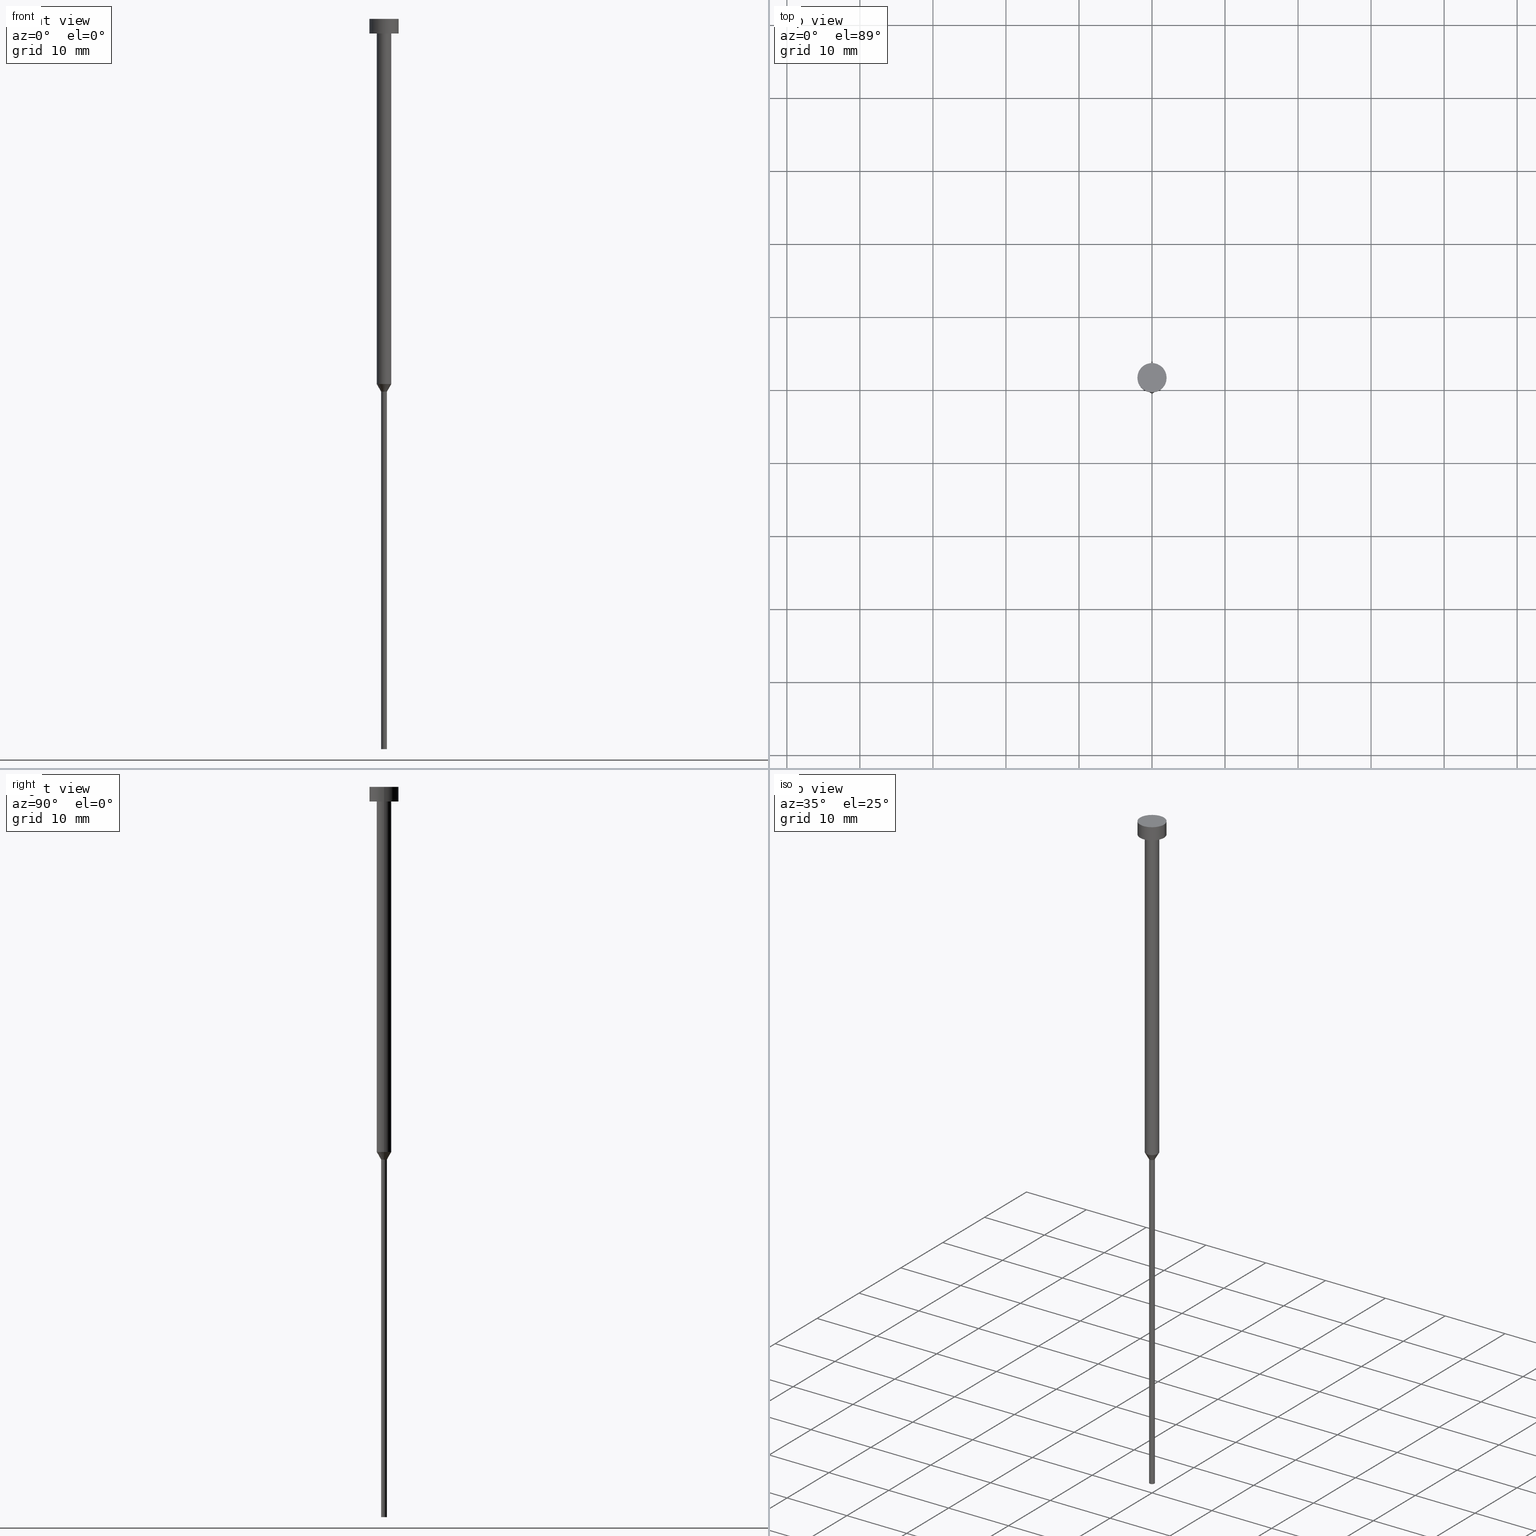
[diagram: canonical four-view strip — front | top / right | iso, engineering-drawing reading convention]
A machine part, canonical four-view strip (front | top / right | iso — engineering-drawing reading convention). The complete STEP part file that produces these views, byte-faithful:
ISO-10303-21;
HEADER;
FILE_DESCRIPTION (( 'STEP AP203' ),
    '1' );
FILE_NAME ('e189.STEP',
    '2026-01-05T10:09:56',
    ( '' ),
    ( '' ),
    'SwSTEP 2.0',
    'SolidWorks 2019',
    '' );
FILE_SCHEMA (( 'CONFIG_CONTROL_DESIGN' ));
ENDSEC;

DATA;
#1 = CARTESIAN_POINT ( 'NONE',  ( -1.000000000000003109, 1.224646799147356905E-16, -50.00000000000000000 ) ) ;
#2 = ORIENTED_EDGE ( 'NONE', *, *, #65, .F. ) ;
#3 = CARTESIAN_POINT ( 'NONE',  ( 0.000000000000000000, 0.000000000000000000, -2.000000000000000444 ) ) ;
#4 = CIRCLE ( 'NONE', #15, 2.000000000000000000 ) ;
#5 = DIRECTION ( 'NONE',  ( 1.000000000000000000, 0.000000000000000000, 0.000000000000000000 ) ) ;
#6 = ORIENTED_EDGE ( 'NONE', *, *, #65, .T. ) ;
#7 = EDGE_LOOP ( 'NONE', ( #260, #231 ) ) ;
#8 = AXIS2_PLACEMENT_3D ( 'NONE', #32, #27, #102 ) ;
#9 = AXIS2_PLACEMENT_3D ( 'NONE', #196, #279, #306 ) ;
#10 = APPLICATION_PROTOCOL_DEFINITION ( 'international standard', 'config_control_design', 1994, #237 ) ;
#11 = VERTEX_POINT ( 'NONE', #146 ) ;
#12 = PERSON_AND_ORGANIZATION ( #340, #163 ) ;
#13 = ORIENTED_EDGE ( 'NONE', *, *, #284, .F. ) ;
#14 = DIRECTION ( 'NONE',  ( 1.000000000000000000, 0.000000000000000000, 0.000000000000000000 ) ) ;
#15 = AXIS2_PLACEMENT_3D ( 'NONE', #325, #85, #261 ) ;
#16 = DIRECTION ( 'NONE',  ( -0.000000000000000000, -0.000000000000000000, 1.000000000000000000 ) ) ;
#17 = CIRCLE ( 'NONE', #220, 1.000000000000003553 ) ;
#18 = DIRECTION ( 'NONE',  ( -0.000000000000000000, -0.000000000000000000, 1.000000000000000000 ) ) ;
#19 = DIRECTION ( 'NONE',  ( 1.000000000000000000, 0.000000000000000000, 0.000000000000000000 ) ) ;
#20 = DIRECTION ( 'NONE',  ( -0.000000000000000000, -0.000000000000000000, 1.000000000000000000 ) ) ;
#21 = CIRCLE ( 'NONE', #319, 1.000000000000003109 ) ;
#22 = COORDINATED_UNIVERSAL_TIME_OFFSET ( 1, 0, .AHEAD. ) ;
#23 = LINE ( 'NONE', #238, #232 ) ;
#24 = CIRCLE ( 'NONE', #313, 2.000000000000000000 ) ;
#25 = DATE_AND_TIME ( #140, #53 ) ;
#26 = ORIENTED_EDGE ( 'NONE', *, *, #258, .F. ) ;
#27 = DIRECTION ( 'NONE',  ( -0.000000000000000000, -0.000000000000000000, 1.000000000000000000 ) ) ;
#28 = ORIENTED_EDGE ( 'NONE', *, *, #215, .F. ) ;
#29 = AXIS2_PLACEMENT_3D ( 'NONE', #295, #115, #19 ) ;
#30 = EDGE_CURVE ( 'NONE', #311, #168, #203, .T. ) ;
#31 = ADVANCED_FACE ( 'NONE', ( #100 ), #124, .T. ) ;
#32 = CARTESIAN_POINT ( 'NONE',  ( 0.000000000000000000, 0.000000000000000000, 0.000000000000000000 ) ) ;
#33 = PERSON_AND_ORGANIZATION ( #340, #163 ) ;
#34 = APPROVAL ( #191, 'NEUR�EN�' ) ;
#35 = VERTEX_POINT ( 'NONE', #285 ) ;
#36 = AXIS2_PLACEMENT_3D ( 'NONE', #147, #16, #309 ) ;
#37 = AXIS2_PLACEMENT_3D ( 'NONE', #108, #75, #61 ) ;
#38 = EDGE_CURVE ( 'NONE', #121, #307, #198, .T. ) ;
#39 = APPROVAL_ROLE ( '' ) ;
#40 = ORIENTED_EDGE ( 'NONE', *, *, #215, .T. ) ;
#41 = DIRECTION ( 'NONE',  ( 0.000000000000000000, -0.000000000000000000, 1.000000000000000000 ) ) ;
#42 = VERTEX_POINT ( 'NONE', #126 ) ;
#43 = CC_DESIGN_DATE_AND_TIME_ASSIGNMENT ( #239, #354, ( #144 ) ) ;
#44 = DIRECTION ( 'NONE',  ( -0.000000000000000000, -0.000000000000000000, 1.000000000000000000 ) ) ;
#45 = ORIENTED_EDGE ( 'NONE', *, *, #135, .F. ) ;
#46 = APPROVAL_STATUS ( 'not_yet_approved' ) ;
#47 = ORIENTED_EDGE ( 'NONE', *, *, #194, .T. ) ;
#48 = DIRECTION ( 'NONE',  ( 1.000000000000000000, 0.000000000000000000, 0.000000000000000000 ) ) ;
#49 = ADVANCED_FACE ( 'NONE', ( #233 ), #71, .T. ) ;
#50 = DIRECTION ( 'NONE',  ( 1.000000000000000000, 0.000000000000000000, 0.000000000000000000 ) ) ;
#51 = CARTESIAN_POINT ( 'NONE',  ( 0.000000000000000000, 0.000000000000000000, 0.000000000000000000 ) ) ;
#52 = DIRECTION ( 'NONE',  ( -0.000000000000000000, -0.000000000000000000, 1.000000000000000000 ) ) ;
#53 = LOCAL_TIME ( 11, 9, 56.00000000000000000, #98 ) ;
#54 = CYLINDRICAL_SURFACE ( 'NONE', #8, 2.000000000000000000 ) ;
#55 = APPROVAL_DATE_TIME ( #302, #34 ) ;
#56 = ORIENTED_EDGE ( 'NONE', *, *, #167, .T. ) ;
#57 = DIRECTION ( 'NONE',  ( -0.000000000000000000, -0.000000000000000000, 1.000000000000000000 ) ) ;
#58 = PERSON_AND_ORGANIZATION_ROLE ( 'creator' ) ;
#59 = EDGE_LOOP ( 'NONE', ( #117, #64, #28, #195 ) ) ;
#60 = PRODUCT_DEFINITION_FORMATION_WITH_SPECIFIED_SOURCE ( 'LIBOVOLN�', '', #105, .NOT_KNOWN. ) ;
#61 = DIRECTION ( 'NONE',  ( 1.000000000000000000, 0.000000000000000000, 0.000000000000000000 ) ) ;
#62 = EDGE_CURVE ( 'NONE', #311, #86, #294, .T. ) ;
#63 = VECTOR ( 'NONE', #93, 1000.000000000000000 ) ;
#64 = ORIENTED_EDGE ( 'NONE', *, *, #91, .T. ) ;
#65 = EDGE_CURVE ( 'NONE', #86, #355, #130, .T. ) ;
#66 = ORIENTED_EDGE ( 'NONE', *, *, #38, .T. ) ;
#67 = MECHANICAL_CONTEXT ( 'NONE', #237, 'mechanical' ) ;
#68 = AXIS2_PLACEMENT_3D ( 'NONE', #346, #139, #50 ) ;
#69 = CARTESIAN_POINT ( 'NONE',  ( 0.000000000000000000, 0.000000000000000000, -51.03923048454132783 ) ) ;
#70 = AXIS2_PLACEMENT_3D ( 'NONE', #51, #263, #48 ) ;
#71 = PLANE ( 'NONE',  #227 ) ;
#72 = PLANE ( 'NONE',  #78 ) ;
#73 = CARTESIAN_POINT ( 'NONE',  ( 0.000000000000000000, 0.000000000000000000, 0.000000000000000000 ) ) ;
#74 = DIRECTION ( 'NONE',  ( -0.000000000000000000, -0.000000000000000000, 1.000000000000000000 ) ) ;
#75 = DIRECTION ( 'NONE',  ( -0.000000000000000000, -0.000000000000000000, 1.000000000000000000 ) ) ;
#76 = DIRECTION ( 'NONE',  ( 1.000000000000000000, 0.000000000000000000, 0.000000000000000000 ) ) ;
#77 = CYLINDRICAL_SURFACE ( 'NONE', #70, 1.000000000000003331 ) ;
#78 = AXIS2_PLACEMENT_3D ( 'NONE', #337, #41, #14 ) ;
#79 = CARTESIAN_POINT ( 'NONE',  ( 0.000000000000000000, 0.000000000000000000, -2.449293598294705921E-16 ) ) ;
#80 = ADVANCED_FACE ( 'NONE', ( #347 ), #82, .T. ) ;
#81 = APPROVAL_STATUS ( 'not_yet_approved' ) ;
#82 = CONICAL_SURFACE ( 'NONE', #274, 1.000000000000003109, 0.5235987755983013692 ) ;
#83 = VERTEX_POINT ( 'NONE', #288 ) ;
#84 = VECTOR ( 'NONE', #157, 1000.000000000000000 ) ;
#85 = DIRECTION ( 'NONE',  ( -0.000000000000000000, -0.000000000000000000, 1.000000000000000000 ) ) ;
#86 = VERTEX_POINT ( 'NONE', #350 ) ;
#87 = CARTESIAN_POINT ( 'NONE',  ( 0.000000000000000000, 0.000000000000000000, -50.00000000000000000 ) ) ;
#88 = PERSON_AND_ORGANIZATION_ROLE ( 'classification_officer' ) ;
#89 = CC_DESIGN_APPROVAL ( #164, ( #178 ) ) ;
#90 = ORIENTED_EDGE ( 'NONE', *, *, #284, .T. ) ;
#91 = EDGE_CURVE ( 'NONE', #278, #35, #23, .T. ) ;
#92 = EDGE_CURVE ( 'NONE', #278, #11, #166, .T. ) ;
#93 = DIRECTION ( 'NONE',  ( -0.000000000000000000, -0.000000000000000000, 1.000000000000000000 ) ) ;
#94 = ORIENTED_EDGE ( 'NONE', *, *, #135, .T. ) ;
#95 = CC_DESIGN_PERSON_AND_ORGANIZATION_ASSIGNMENT ( #158, #185, ( #60 ) ) ;
#96 = CARTESIAN_POINT ( 'NONE',  ( 2.000000000000000000, 0.000000000000000000, 0.000000000000000000 ) ) ;
#97 = LOCAL_TIME ( 11, 9, 56.00000000000000000, #161 ) ;
#98 = COORDINATED_UNIVERSAL_TIME_OFFSET ( 1, 0, .AHEAD. ) ;
#99 = EDGE_CURVE ( 'NONE', #35, #83, #17, .T. ) ;
#100 = FACE_OUTER_BOUND ( 'NONE', #276, .T. ) ;
#101 = DIRECTION ( 'NONE',  ( 0.000000000000000000, 0.000000000000000000, -1.000000000000000000 ) ) ;
#102 = DIRECTION ( 'NONE',  ( 1.000000000000000000, 0.000000000000000000, 0.000000000000000000 ) ) ;
#103 = CARTESIAN_POINT ( 'NONE',  ( 0.000000000000000000, 0.000000000000000000, -50.00000000000000000 ) ) ;
#104 = APPROVAL_PERSON_ORGANIZATION ( #137, #331, #218 ) ;
#105 = PRODUCT ( 'e189', 'e189', '', ( #67 ) ) ;
#106 = CC_DESIGN_PERSON_AND_ORGANIZATION_ASSIGNMENT ( #12, #229, ( #105 ) ) ;
#107 = CARTESIAN_POINT ( 'NONE',  ( -2.000000000000000000, 2.449293598294706414E-16, -2.449293598294705921E-16 ) ) ;
#108 = CARTESIAN_POINT ( 'NONE',  ( 0.000000000000000000, 0.000000000000000000, -50.00000000000000000 ) ) ;
#109 = SECURITY_CLASSIFICATION_LEVEL ( 'unclassified' ) ;
#110 = EDGE_LOOP ( 'NONE', ( #293, #323, #251, #159 ) ) ;
#111 = CIRCLE ( 'NONE', #68, 0.4000000000000000222 ) ;
#112 = DIRECTION ( 'NONE',  ( 0.5000000000000021094, 0.000000000000000000, 0.8660254037844373753 ) ) ;
#113 = PERSON_AND_ORGANIZATION ( #340, #163 ) ;
#114 = ORIENTED_EDGE ( 'NONE', *, *, #30, .F. ) ;
#115 = DIRECTION ( 'NONE',  ( -0.000000000000000000, -0.000000000000000000, 1.000000000000000000 ) ) ;
#116 = VECTOR ( 'NONE', #208, 1000.000000000000000 ) ;
#117 = ORIENTED_EDGE ( 'NONE', *, *, #221, .T. ) ;
#118 = CYLINDRICAL_SURFACE ( 'NONE', #9, 1.000000000000003331 ) ;
#119 = EDGE_LOOP ( 'NONE', ( #114, #202, #6, #26 ) ) ;
#120 = VECTOR ( 'NONE', #329, 1000.000000000000227 ) ;
#121 = VERTEX_POINT ( 'NONE', #107 ) ;
#122 = APPLICATION_PROTOCOL_DEFINITION ( 'international standard', 'config_control_design', 1994, #333 ) ;
#123 = ADVANCED_FACE ( 'NONE', ( #318 ), #77, .T. ) ;
#124 = CYLINDRICAL_SURFACE ( 'NONE', #338, 0.3999999999999999667 ) ;
#125 = AXIS2_PLACEMENT_3D ( 'NONE', #243, #18, #286 ) ;
#126 = CARTESIAN_POINT ( 'NONE',  ( 2.000000000000000000, 0.000000000000000000, -2.000000000000000444 ) ) ;
#127 = CYLINDRICAL_SURFACE ( 'NONE', #342, 0.3999999999999999667 ) ;
#128 = LINE ( 'NONE', #217, #205 ) ;
#129 = CC_DESIGN_PERSON_AND_ORGANIZATION_ASSIGNMENT ( #33, #58, ( #178 ) ) ;
#130 = LINE ( 'NONE', #235, #116 ) ;
#131 = APPROVAL_PERSON_ORGANIZATION ( #296, #34, #292 ) ;
#132 = PERSON_AND_ORGANIZATION_ROLE ( 'creator' ) ;
#133 = CARTESIAN_POINT ( 'NONE',  ( 0.000000000000000000, 0.000000000000000000, -50.00000000000000000 ) ) ;
#134 = ORIENTED_EDGE ( 'NONE', *, *, #167, .F. ) ;
#135 = EDGE_CURVE ( 'NONE', #307, #121, #24, .T. ) ;
#136 = CARTESIAN_POINT ( 'NONE',  ( -1.000000000000003109, 1.224646799147356905E-16, -50.00000000000000000 ) ) ;
#137 = PERSON_AND_ORGANIZATION ( #340, #163 ) ;
#138 = ORIENTED_EDGE ( 'NONE', *, *, #213, .T. ) ;
#139 = DIRECTION ( 'NONE',  ( -0.000000000000000000, -0.000000000000000000, 1.000000000000000000 ) ) ;
#140 = CALENDAR_DATE ( 2026, 5, 1 ) ;
#141 = ORIENTED_EDGE ( 'NONE', *, *, #221, .F. ) ;
#142 = CARTESIAN_POINT ( 'NONE',  ( 2.000000000000000000, 0.000000000000000000, -2.449293598294705921E-16 ) ) ;
#143 = EDGE_LOOP ( 'NONE', ( #40, #216 ) ) ;
#144 = SECURITY_CLASSIFICATION ( '', '', #109 ) ;
#145 = PERSON_AND_ORGANIZATION ( #340, #163 ) ;
#146 = CARTESIAN_POINT ( 'NONE',  ( 1.000000000000003109, 0.000000000000000000, -50.00000000000000000 ) ) ;
#147 = CARTESIAN_POINT ( 'NONE',  ( 0.000000000000000000, 0.000000000000000000, -2.449293598294705921E-16 ) ) ;
#148 = DIRECTION ( 'NONE',  ( 1.000000000000000000, 0.000000000000000000, 0.000000000000000000 ) ) ;
#149 = ADVANCED_FACE ( 'NONE', ( #184 ), #54, .T. ) ;
#150 = ADVANCED_FACE ( 'NONE', ( #179 ), #177, .T. ) ;
#151 = LINE ( 'NONE', #301, #192 ) ;
#152 = CC_DESIGN_PERSON_AND_ORGANIZATION_ASSIGNMENT ( #268, #132, ( #60 ) ) ;
#153 = DIRECTION ( 'NONE',  ( -0.000000000000000000, -0.000000000000000000, 1.000000000000000000 ) ) ;
#154 = DIRECTION ( 'NONE',  ( -0.000000000000000000, -0.000000000000000000, 1.000000000000000000 ) ) ;
#155 = SHAPE_DEFINITION_REPRESENTATION ( #351, #193 ) ;
#156 = EDGE_CURVE ( 'NONE', #355, #11, #128, .T. ) ;
#157 = DIRECTION ( 'NONE',  ( -0.000000000000000000, -0.000000000000000000, 1.000000000000000000 ) ) ;
#158 = PERSON_AND_ORGANIZATION ( #340, #163 ) ;
#159 = ORIENTED_EDGE ( 'NONE', *, *, #99, .F. ) ;
#160 = DIRECTION ( 'NONE',  ( 1.000000000000000000, 0.000000000000000000, 0.000000000000000000 ) ) ;
#161 = COORDINATED_UNIVERSAL_TIME_OFFSET ( 1, 0, .AHEAD. ) ;
#162 = EDGE_LOOP ( 'NONE', ( #336, #169, #245, #254 ) ) ;
#163 = ORGANIZATION ( 'NEUR�EN�', 'NEUR�EN�', '' ) ;
#164 = APPROVAL ( #46, 'NEUR�EN�' ) ;
#165 = CONICAL_SURFACE ( 'NONE', #37, 1.000000000000003109, 0.5235987755983013692 ) ;
#166 = CIRCLE ( 'NONE', #324, 1.000000000000003109 ) ;
#167 = EDGE_CURVE ( 'NONE', #297, #121, #236, .T. ) ;
#168 = VERTEX_POINT ( 'NONE', #212 ) ;
#169 = ORIENTED_EDGE ( 'NONE', *, *, #258, .T. ) ;
#170 = UNCERTAINTY_MEASURE_WITH_UNIT (LENGTH_MEASURE( 1.000000000000000082E-05 ), #339, 'distance_accuracy_value', 'NONE');
#171 = CARTESIAN_POINT ( 'NONE',  ( 0.000000000000000000, -2.000000000000000000, -2.000000000000000444 ) ) ;
#172 = CC_DESIGN_APPROVAL ( #331, ( #60 ) ) ;
#173 = ORIENTED_EDGE ( 'NONE', *, *, #249, .T. ) ;
#174 = CARTESIAN_POINT ( 'NONE',  ( 0.3999999999999999667, 0.000000000000000000, -51.03923048454132783 ) ) ;
#175 = DIRECTION ( 'NONE',  ( -0.000000000000000000, -0.000000000000000000, 1.000000000000000000 ) ) ;
#176 = ADVANCED_FACE ( 'NONE', ( #299 ), #127, .T. ) ;
#177 = CYLINDRICAL_SURFACE ( 'NONE', #29, 2.000000000000000000 ) ;
#178 = PRODUCT_DEFINITION ( 'NEZN�M�', '', #60, #225 ) ;
#179 = FACE_OUTER_BOUND ( 'NONE', #242, .T. ) ;
#180 = DIRECTION ( 'NONE',  ( 1.000000000000000000, 0.000000000000000000, 0.000000000000000000 ) ) ;
#181 = DIRECTION ( 'NONE',  ( 1.000000000000000000, 0.000000000000000000, 0.000000000000000000 ) ) ;
#182 = ADVANCED_FACE ( 'NONE', ( #270 ), #165, .T. ) ;
#183 = AXIS2_PLACEMENT_3D ( 'NONE', #310, #226, #257 ) ;
#184 = FACE_OUTER_BOUND ( 'NONE', #224, .T. ) ;
#185 = PERSON_AND_ORGANIZATION_ROLE ( 'design_supplier' ) ;
#186 = EDGE_LOOP ( 'NONE', ( #305, #13 ) ) ;
#187 = DIRECTION ( 'NONE',  ( -0.000000000000000000, -0.000000000000000000, 1.000000000000000000 ) ) ;
#188 = EDGE_LOOP ( 'NONE', ( #222, #138, #141, #211 ) ) ;
#189 = DIRECTION ( 'NONE',  ( 1.000000000000000000, 0.000000000000000000, 0.000000000000000000 ) ) ;
#190 = CC_DESIGN_PERSON_AND_ORGANIZATION_ASSIGNMENT ( #113, #88, ( #144 ) ) ;
#191 = APPROVAL_STATUS ( 'not_yet_approved' ) ;
#192 = VECTOR ( 'NONE', #74, 1000.000000000000000 ) ;
#193 = ADVANCED_BREP_SHAPE_REPRESENTATION ( 'e189', ( #281, #183 ), #273 ) ;
#194 = EDGE_CURVE ( 'NONE', #42, #297, #4, .T. ) ;
#195 = ORIENTED_EDGE ( 'NONE', *, *, #289, .F. ) ;
#196 = CARTESIAN_POINT ( 'NONE',  ( 0.000000000000000000, 0.000000000000000000, 0.000000000000000000 ) ) ;
#197 = ORIENTED_EDGE ( 'NONE', *, *, #322, .F. ) ;
#198 = CIRCLE ( 'NONE', #36, 2.000000000000000000 ) ;
#199 = FACE_OUTER_BOUND ( 'NONE', #110, .T. ) ;
#200 = DIRECTION ( 'NONE',  ( 1.000000000000000000, 0.000000000000000000, 0.000000000000000000 ) ) ;
#201 = FACE_OUTER_BOUND ( 'NONE', #300, .T. ) ;
#202 = ORIENTED_EDGE ( 'NONE', *, *, #62, .T. ) ;
#203 = LINE ( 'NONE', #256, #326 ) ;
#204 = DIRECTION ( 'NONE',  ( 1.000000000000000000, 0.000000000000000000, 0.000000000000000000 ) ) ;
#205 = VECTOR ( 'NONE', #112, 1000.000000000000227 ) ;
#206 = CIRCLE ( 'NONE', #210, 0.3999999999999999667 ) ;
#207 = CARTESIAN_POINT ( 'NONE',  ( 0.000000000000000000, 0.000000000000000000, -2.000000000000000444 ) ) ;
#208 = DIRECTION ( 'NONE',  ( -0.000000000000000000, -0.000000000000000000, 1.000000000000000000 ) ) ;
#209 = CARTESIAN_POINT ( 'NONE',  ( -2.000000000000000000, 2.449293598294706414E-16, 0.000000000000000000 ) ) ;
#210 = AXIS2_PLACEMENT_3D ( 'NONE', #69, #44, #5 ) ;
#211 = ORIENTED_EDGE ( 'NONE', *, *, #156, .F. ) ;
#212 = CARTESIAN_POINT ( 'NONE',  ( -0.3999999999999999667, 4.898587196589412459E-17, -51.03923048454132783 ) ) ;
#213 = EDGE_CURVE ( 'NONE', #168, #278, #320, .T. ) ;
#214 = APPROVAL_DATE_TIME ( #25, #164 ) ;
#215 = EDGE_CURVE ( 'NONE', #83, #35, #259, .T. ) ;
#216 = ORIENTED_EDGE ( 'NONE', *, *, #99, .T. ) ;
#217 = CARTESIAN_POINT ( 'NONE',  ( 1.000000000000003109, 0.000000000000000000, -50.00000000000000000 ) ) ;
#218 = APPROVAL_ROLE ( '' ) ;
#219 = CC_DESIGN_APPROVAL ( #34, ( #144 ) ) ;
#220 = AXIS2_PLACEMENT_3D ( 'NONE', #207, #20, #76 ) ;
#221 = EDGE_CURVE ( 'NONE', #11, #278, #21, .T. ) ;
#222 = ORIENTED_EDGE ( 'NONE', *, *, #322, .T. ) ;
#223 = CARTESIAN_POINT ( 'NONE',  ( -0.4000000000000000777, 4.898587196589413692E-17, -100.0000000000000000 ) ) ;
#224 = EDGE_LOOP ( 'NONE', ( #47, #56, #45, #334 ) ) ;
#225 = DESIGN_CONTEXT ( 'detailed design', #333, 'design' ) ;
#226 = DIRECTION ( 'NONE',  ( 0.000000000000000000, 0.000000000000000000, 1.000000000000000000 ) ) ;
#227 = AXIS2_PLACEMENT_3D ( 'NONE', #344, #101, #290 ) ;
#228 = LINE ( 'NONE', #96, #63 ) ;
#229 = PERSON_AND_ORGANIZATION_ROLE ( 'design_owner' ) ;
#230 = CIRCLE ( 'NONE', #332, 2.000000000000000000 ) ;
#231 = ORIENTED_EDGE ( 'NONE', *, *, #62, .F. ) ;
#232 = VECTOR ( 'NONE', #52, 1000.000000000000000 ) ;
#233 = FACE_OUTER_BOUND ( 'NONE', #7, .T. ) ;
#234 = DIRECTION ( 'NONE',  ( -0.000000000000000000, -0.000000000000000000, 1.000000000000000000 ) ) ;
#235 = CARTESIAN_POINT ( 'NONE',  ( 0.3999999999999999667, 0.000000000000000000, 0.000000000000000000 ) ) ;
#236 = LINE ( 'NONE', #209, #84 ) ;
#237 = APPLICATION_CONTEXT ( 'configuration controlled 3d designs of mechanical parts and assemblies' ) ;
#238 = CARTESIAN_POINT ( 'NONE',  ( -1.000000000000003331, 1.224646799147357151E-16, 0.000000000000000000 ) ) ;
#239 = DATE_AND_TIME ( #327, #248 ) ;
#240 = CARTESIAN_POINT ( 'NONE',  ( 0.000000000000000000, 0.000000000000000000, -100.0000000000000000 ) ) ;
#241 = COORDINATED_UNIVERSAL_TIME_OFFSET ( 1, 0, .AHEAD. ) ;
#242 = EDGE_LOOP ( 'NONE', ( #134, #90, #269, #272 ) ) ;
#243 = CARTESIAN_POINT ( 'NONE',  ( 0.000000000000000000, 0.000000000000000000, -2.000000000000000444 ) ) ;
#244 = CALENDAR_DATE ( 2026, 5, 1 ) ;
#245 = ORIENTED_EDGE ( 'NONE', *, *, #156, .T. ) ;
#246 = CARTESIAN_POINT ( 'NONE',  ( 0.000000000000000000, 0.000000000000000000, -51.03923048454132783 ) ) ;
#247 = CALENDAR_DATE ( 2026, 5, 1 ) ;
#248 = LOCAL_TIME ( 11, 9, 56.00000000000000000, #317 ) ;
#249 = EDGE_CURVE ( 'NONE', #86, #311, #111, .T. ) ;
#250 = AXIS2_PLACEMENT_3D ( 'NONE', #240, #266, #180 ) ;
#251 = ORIENTED_EDGE ( 'NONE', *, *, #289, .T. ) ;
#252 = CC_DESIGN_DATE_AND_TIME_ASSIGNMENT ( #321, #352, ( #178 ) ) ;
#253 = AXIS2_PLACEMENT_3D ( 'NONE', #171, #283, #335 ) ;
#254 = ORIENTED_EDGE ( 'NONE', *, *, #92, .F. ) ;
#255 =( NAMED_UNIT ( * ) PLANE_ANGLE_UNIT ( ) SI_UNIT ( $, .RADIAN. ) );
#256 = CARTESIAN_POINT ( 'NONE',  ( -0.3999999999999999667, 4.898587196589412459E-17, 0.000000000000000000 ) ) ;
#257 = DIRECTION ( 'NONE',  ( 1.000000000000000000, 0.000000000000000000, 0.000000000000000000 ) ) ;
#258 = EDGE_CURVE ( 'NONE', #168, #355, #304, .T. ) ;
#259 = CIRCLE ( 'NONE', #125, 1.000000000000003553 ) ;
#260 = ORIENTED_EDGE ( 'NONE', *, *, #249, .F. ) ;
#261 = DIRECTION ( 'NONE',  ( 1.000000000000000000, 0.000000000000000000, 0.000000000000000000 ) ) ;
#262 = CARTESIAN_POINT ( 'NONE',  ( -2.000000000000000000, 2.449293598294706414E-16, -2.000000000000000444 ) ) ;
#263 = DIRECTION ( 'NONE',  ( -0.000000000000000000, -0.000000000000000000, 1.000000000000000000 ) ) ;
#264 = CC_DESIGN_SECURITY_CLASSIFICATION ( #144, ( #60 ) ) ;
#265 = CALENDAR_DATE ( 2026, 5, 1 ) ;
#266 = DIRECTION ( 'NONE',  ( -0.000000000000000000, -0.000000000000000000, 1.000000000000000000 ) ) ;
#267 = CARTESIAN_POINT ( 'NONE',  ( 0.000000000000000000, 0.000000000000000000, 0.000000000000000000 ) ) ;
#268 = PERSON_AND_ORGANIZATION ( #340, #163 ) ;
#269 = ORIENTED_EDGE ( 'NONE', *, *, #345, .T. ) ;
#270 = FACE_OUTER_BOUND ( 'NONE', #188, .T. ) ;
#271 = APPROVAL_DATE_TIME ( #330, #331 ) ;
#272 = ORIENTED_EDGE ( 'NONE', *, *, #38, .F. ) ;
#273 =( GEOMETRIC_REPRESENTATION_CONTEXT ( 3 ) GLOBAL_UNCERTAINTY_ASSIGNED_CONTEXT ( ( #170 ) ) GLOBAL_UNIT_ASSIGNED_CONTEXT ( ( #339, #255, #277 ) ) REPRESENTATION_CONTEXT ( 'NONE', 'WORKASPACE' ) );
#274 = AXIS2_PLACEMENT_3D ( 'NONE', #103, #153, #181 ) ;
#275 = CLOSED_SHELL ( 'NONE', ( #149, #123, #182, #31, #49, #176, #80, #353, #298, #150, #314 ) ) ;
#276 = EDGE_LOOP ( 'NONE', ( #173, #328, #197, #2 ) ) ;
#277 =( NAMED_UNIT ( * ) SI_UNIT ( $, .STERADIAN. ) SOLID_ANGLE_UNIT ( ) );
#278 = VERTEX_POINT ( 'NONE', #1 ) ;
#279 = DIRECTION ( 'NONE',  ( -0.000000000000000000, -0.000000000000000000, 1.000000000000000000 ) ) ;
#280 = LOCAL_TIME ( 11, 9, 56.00000000000000000, #241 ) ;
#281 = MANIFOLD_SOLID_BREP ( 'Rotovat1', #275 ) ;
#282 = DIRECTION ( 'NONE',  ( -0.000000000000000000, -0.000000000000000000, 1.000000000000000000 ) ) ;
#283 = DIRECTION ( 'NONE',  ( 0.000000000000000000, 0.000000000000000000, -1.000000000000000000 ) ) ;
#284 = EDGE_CURVE ( 'NONE', #297, #42, #230, .T. ) ;
#285 = CARTESIAN_POINT ( 'NONE',  ( -1.000000000000003553, 1.224646799147357398E-16, -2.000000000000000444 ) ) ;
#286 = DIRECTION ( 'NONE',  ( 1.000000000000000000, 0.000000000000000000, 0.000000000000000000 ) ) ;
#287 = DIRECTION ( 'NONE',  ( 1.000000000000000000, 0.000000000000000000, 0.000000000000000000 ) ) ;
#288 = CARTESIAN_POINT ( 'NONE',  ( 1.000000000000003553, 0.000000000000000000, -2.000000000000000444 ) ) ;
#289 = EDGE_CURVE ( 'NONE', #11, #83, #151, .T. ) ;
#290 = DIRECTION ( 'NONE',  ( -1.000000000000000000, 0.000000000000000000, -0.000000000000000000 ) ) ;
#291 = APPROVAL_PERSON_ORGANIZATION ( #145, #164, #39 ) ;
#292 = APPROVAL_ROLE ( '' ) ;
#293 = ORIENTED_EDGE ( 'NONE', *, *, #91, .F. ) ;
#294 = CIRCLE ( 'NONE', #250, 0.4000000000000000222 ) ;
#295 = CARTESIAN_POINT ( 'NONE',  ( 0.000000000000000000, 0.000000000000000000, 0.000000000000000000 ) ) ;
#296 = PERSON_AND_ORGANIZATION ( #340, #163 ) ;
#297 = VERTEX_POINT ( 'NONE', #262 ) ;
#298 = ADVANCED_FACE ( 'NONE', ( #343, #308 ), #341, .T. ) ;
#299 = FACE_OUTER_BOUND ( 'NONE', #119, .T. ) ;
#300 = EDGE_LOOP ( 'NONE', ( #94, #66 ) ) ;
#301 = CARTESIAN_POINT ( 'NONE',  ( 1.000000000000003331, 0.000000000000000000, 0.000000000000000000 ) ) ;
#302 = DATE_AND_TIME ( #244, #97 ) ;
#303 = LOCAL_TIME ( 11, 9, 56.00000000000000000, #22 ) ;
#304 = CIRCLE ( 'NONE', #349, 0.3999999999999999667 ) ;
#305 = ORIENTED_EDGE ( 'NONE', *, *, #194, .F. ) ;
#306 = DIRECTION ( 'NONE',  ( 1.000000000000000000, 0.000000000000000000, 0.000000000000000000 ) ) ;
#307 = VERTEX_POINT ( 'NONE', #142 ) ;
#308 = FACE_OUTER_BOUND ( 'NONE', #186, .T. ) ;
#309 = DIRECTION ( 'NONE',  ( 1.000000000000000000, 0.000000000000000000, 0.000000000000000000 ) ) ;
#310 = CARTESIAN_POINT ( 'NONE',  ( 0.000000000000000000, 0.000000000000000000, 0.000000000000000000 ) ) ;
#311 = VERTEX_POINT ( 'NONE', #223 ) ;
#312 = DIRECTION ( 'NONE',  ( -0.000000000000000000, -0.000000000000000000, 1.000000000000000000 ) ) ;
#313 = AXIS2_PLACEMENT_3D ( 'NONE', #79, #57, #148 ) ;
#314 = ADVANCED_FACE ( 'NONE', ( #201 ), #72, .T. ) ;
#315 = PRODUCT_RELATED_PRODUCT_CATEGORY ( 'detail', '', ( #105 ) ) ;
#316 = DIRECTION ( 'NONE',  ( 1.000000000000000000, 0.000000000000000000, 0.000000000000000000 ) ) ;
#317 = COORDINATED_UNIVERSAL_TIME_OFFSET ( 1, 0, .AHEAD. ) ;
#318 = FACE_OUTER_BOUND ( 'NONE', #59, .T. ) ;
#319 = AXIS2_PLACEMENT_3D ( 'NONE', #87, #234, #287 ) ;
#320 = LINE ( 'NONE', #136, #120 ) ;
#321 = DATE_AND_TIME ( #265, #280 ) ;
#322 = EDGE_CURVE ( 'NONE', #355, #168, #206, .T. ) ;
#323 = ORIENTED_EDGE ( 'NONE', *, *, #92, .T. ) ;
#324 = AXIS2_PLACEMENT_3D ( 'NONE', #133, #154, #316 ) ;
#325 = CARTESIAN_POINT ( 'NONE',  ( 0.000000000000000000, 0.000000000000000000, -2.000000000000000444 ) ) ;
#326 = VECTOR ( 'NONE', #282, 1000.000000000000000 ) ;
#327 = CALENDAR_DATE ( 2026, 5, 1 ) ;
#328 = ORIENTED_EDGE ( 'NONE', *, *, #30, .T. ) ;
#329 = DIRECTION ( 'NONE',  ( -0.5000000000000021094, 6.123233995736791920E-17, 0.8660254037844373753 ) ) ;
#330 = DATE_AND_TIME ( #247, #303 ) ;
#331 = APPROVAL ( #81, 'NEUR�EN�' ) ;
#332 = AXIS2_PLACEMENT_3D ( 'NONE', #3, #312, #189 ) ;
#333 = APPLICATION_CONTEXT ( 'configuration controlled 3d designs of mechanical parts and assemblies' ) ;
#334 = ORIENTED_EDGE ( 'NONE', *, *, #345, .F. ) ;
#335 = DIRECTION ( 'NONE',  ( -1.000000000000000000, 0.000000000000000000, -0.000000000000000000 ) ) ;
#336 = ORIENTED_EDGE ( 'NONE', *, *, #213, .F. ) ;
#337 = CARTESIAN_POINT ( 'NONE',  ( 0.000000000000000000, 0.000000000000000000, -1.224646799147352961E-16 ) ) ;
#338 = AXIS2_PLACEMENT_3D ( 'NONE', #73, #175, #200 ) ;
#339 =( LENGTH_UNIT ( ) NAMED_UNIT ( * ) SI_UNIT ( .MILLI., .METRE. ) );
#340 = PERSON ( 'NEUR�EN�', 'NEUR�EN�', 'NEUR�EN�', ('NEUR�EN�'), ('NEUR�EN�'), ('NEUR�EN�') ) ;
#341 = PLANE ( 'NONE',  #253 ) ;
#342 = AXIS2_PLACEMENT_3D ( 'NONE', #267, #348, #160 ) ;
#343 = FACE_BOUND ( 'NONE', #143, .T. ) ;
#344 = CARTESIAN_POINT ( 'NONE',  ( 0.000000000000000000, 0.000000000000000000, -100.0000000000000000 ) ) ;
#345 = EDGE_CURVE ( 'NONE', #42, #307, #228, .T. ) ;
#346 = CARTESIAN_POINT ( 'NONE',  ( 0.000000000000000000, 0.000000000000000000, -100.0000000000000000 ) ) ;
#347 = FACE_OUTER_BOUND ( 'NONE', #162, .T. ) ;
#348 = DIRECTION ( 'NONE',  ( -0.000000000000000000, -0.000000000000000000, 1.000000000000000000 ) ) ;
#349 = AXIS2_PLACEMENT_3D ( 'NONE', #246, #187, #204 ) ;
#350 = CARTESIAN_POINT ( 'NONE',  ( 0.4000000000000000222, 0.000000000000000000, -100.0000000000000000 ) ) ;
#351 = PRODUCT_DEFINITION_SHAPE ( 'NONE', 'NONE',  #178 ) ;
#352 = DATE_TIME_ROLE ( 'creation_date' ) ;
#353 = ADVANCED_FACE ( 'NONE', ( #199 ), #118, .T. ) ;
#354 = DATE_TIME_ROLE ( 'classification_date' ) ;
#355 = VERTEX_POINT ( 'NONE', #174 ) ;
ENDSEC;
END-ISO-10303-21;
